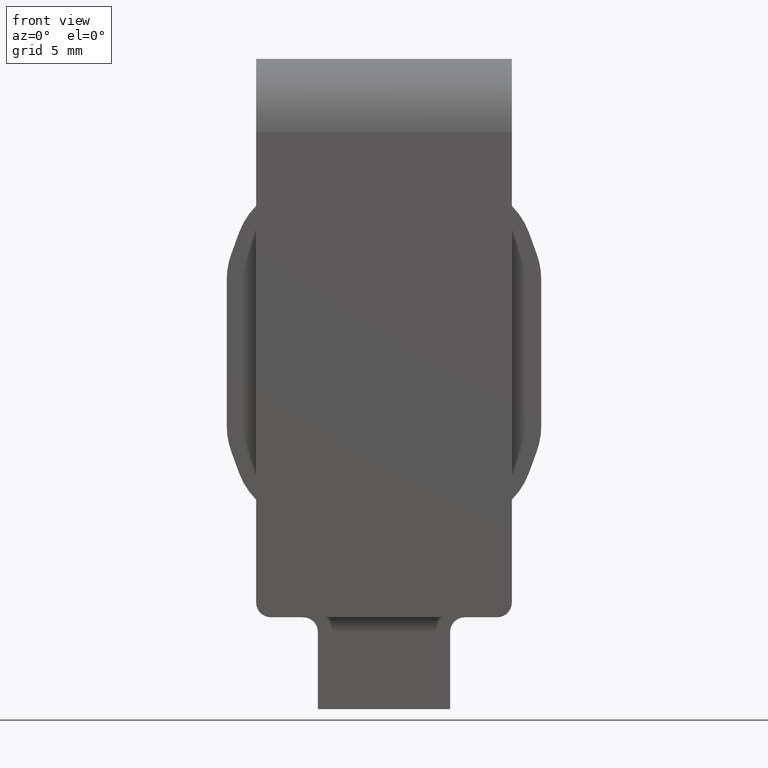
[diagram: clean part render]
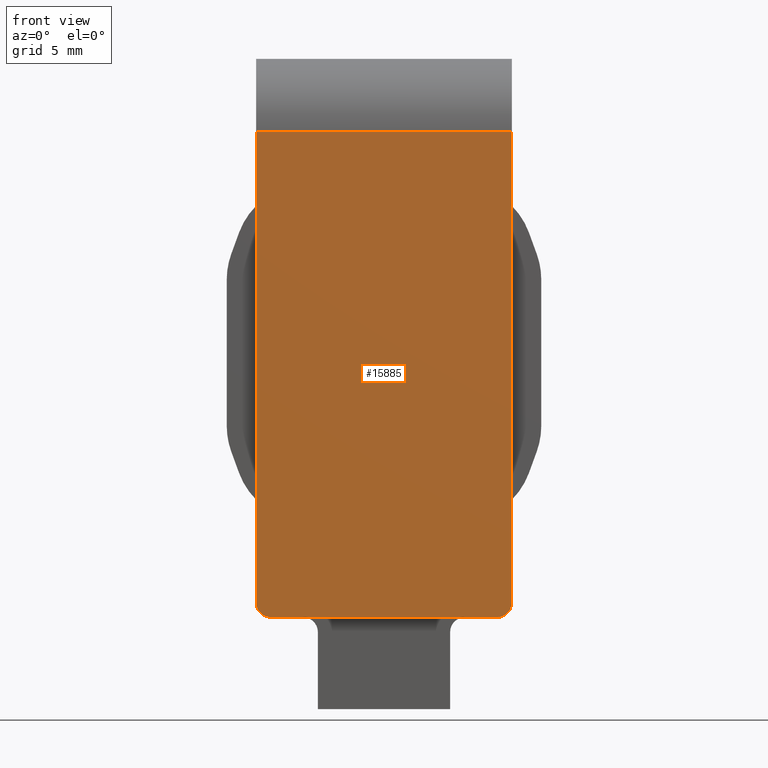
[diagram: same view with one face highlighted and labeled with its STEP entity id]
A machine part, front view. The second image highlights one B-rep face of the part: STEP entity #15885.
In plain terms, the highlighted planar face has unit normal (0, 1, 0).
Its self-contained STEP definition (entity closure, byte-faithful):
#222 = ORIENTED_EDGE ( 'NONE', *, *, #6494, .T. ) ;
#343 = CARTESIAN_POINT ( 'NONE',  ( 8.699999999999999289, 0.000000000000000000, 0.000000000000000000 ) ) ;
#473 = CARTESIAN_POINT ( 'NONE',  ( -8.699999999999999289, 0.000000000000000000, 0.000000000000000000 ) ) ;
#942 = DIRECTION ( 'NONE',  ( 0.000000000000000000, -1.141265444721583757E-16, 1.000000000000000000 ) ) ;
#1002 = EDGE_CURVE ( 'NONE', #12521, #16090, #15690, .T. ) ;
#1437 = DIRECTION ( 'NONE',  ( -0.000000000000000000, 1.000000000000000000, 1.141265444721583757E-16 ) ) ;
#1494 = CARTESIAN_POINT ( 'NONE',  ( 8.699999999999999289, 0.000000000000000000, 0.000000000000000000 ) ) ;
#1818 = LINE ( 'NONE', #9571, #4382 ) ;
#2210 = VERTEX_POINT ( 'NONE', #6812 ) ;
#3018 = AXIS2_PLACEMENT_3D ( 'NONE', #9914, #12358, #942 ) ;
#3408 = VECTOR ( 'NONE', #10595, 1000.000000000000000 ) ;
#3879 = CARTESIAN_POINT ( 'NONE',  ( -7.699999999999998401, 0.000000000000000000, 0.000000000000000000 ) ) ;
#4334 = FACE_OUTER_BOUND ( 'NONE', #11967, .T. ) ;
#4382 = VECTOR ( 'NONE', #14657, 1000.000000000000000 ) ;
#4410 = VERTEX_POINT ( 'NONE', #3879 ) ;
#4673 = EDGE_CURVE ( 'NONE', #12521, #15067, #9498, .T. ) ;
#4919 = VECTOR ( 'NONE', #11596, 1000.000000000000000 ) ;
#5080 = CIRCLE ( 'NONE', #3018, 1.000000000000000000 ) ;
#5236 = ORIENTED_EDGE ( 'NONE', *, *, #1002, .T. ) ;
#5261 = DIRECTION ( 'NONE',  ( 0.000000000000000000, -1.141265444721583757E-16, 1.000000000000000000 ) ) ;
#5461 = CARTESIAN_POINT ( 'NONE',  ( -7.699999999999998401, -1.141265444721583757E-16, 1.000000000000000000 ) ) ;
#5715 = VERTEX_POINT ( 'NONE', #9182 ) ;
#5891 = EDGE_CURVE ( 'NONE', #2210, #4410, #13443, .T. ) ;
#6494 = EDGE_CURVE ( 'NONE', #16090, #2210, #9259, .T. ) ;
#6498 = AXIS2_PLACEMENT_3D ( 'NONE', #343, #1437, #5261 ) ;
#6725 = ORIENTED_EDGE ( 'NONE', *, *, #7543, .T. ) ;
#6763 = AXIS2_PLACEMENT_3D ( 'NONE', #5461, #15578, #15680 ) ;
#6812 = CARTESIAN_POINT ( 'NONE',  ( -8.699999999999999289, -1.141265444721583757E-16, 1.000000000000000000 ) ) ;
#7239 = ORIENTED_EDGE ( 'NONE', *, *, #5891, .T. ) ;
#7543 = EDGE_CURVE ( 'NONE', #5715, #15067, #5080, .T. ) ;
#9182 = CARTESIAN_POINT ( 'NONE',  ( 7.699999999999999289, 0.000000000000000000, 0.000000000000000000 ) ) ;
#9259 = LINE ( 'NONE', #473, #10056 ) ;
#9498 = LINE ( 'NONE', #1494, #4919 ) ;
#9571 = CARTESIAN_POINT ( 'NONE',  ( 8.699999999999999289, 0.000000000000000000, 0.000000000000000000 ) ) ;
#9914 = CARTESIAN_POINT ( 'NONE',  ( 7.699999999999999289, -1.141265444721583757E-16, 1.000000000000000000 ) ) ;
#10056 = VECTOR ( 'NONE', #10582, 1000.000000000000000 ) ;
#10502 = PLANE ( 'NONE',  #6498 ) ;
#10522 = ORIENTED_EDGE ( 'NONE', *, *, #4673, .F. ) ;
#10582 = DIRECTION ( 'NONE',  ( -0.000000000000000000, 1.141265444721583757E-16, -1.000000000000000000 ) ) ;
#10595 = DIRECTION ( 'NONE',  ( -1.000000000000000000, 0.000000000000000000, 0.000000000000000000 ) ) ;
#10959 = CARTESIAN_POINT ( 'NONE',  ( -8.699999999999999289, -3.469446951953614189E-15, 33.02506281446689940 ) ) ;
#11596 = DIRECTION ( 'NONE',  ( -0.000000000000000000, 1.141265444721583757E-16, -1.000000000000000000 ) ) ;
#11937 = CARTESIAN_POINT ( 'NONE',  ( 8.699999999999999289, -3.769036299991080429E-15, 33.02506281446689940 ) ) ;
#11967 = EDGE_LOOP ( 'NONE', ( #10522, #5236, #222, #7239, #15845, #6725 ) ) ;
#11981 = EDGE_CURVE ( 'NONE', #5715, #4410, #1818, .T. ) ;
#12358 = DIRECTION ( 'NONE',  ( 0.000000000000000000, -1.000000000000000000, -1.141265444721583757E-16 ) ) ;
#12521 = VERTEX_POINT ( 'NONE', #13090 ) ;
#12783 = CARTESIAN_POINT ( 'NONE',  ( 8.699999999999999289, -1.141265444721583757E-16, 1.000000000000000000 ) ) ;
#13090 = CARTESIAN_POINT ( 'NONE',  ( 8.699999999999999289, -3.469446951953614189E-15, 33.02506281446689940 ) ) ;
#13443 = CIRCLE ( 'NONE', #6763, 1.000000000000000000 ) ;
#14657 = DIRECTION ( 'NONE',  ( -1.000000000000000000, -0.000000000000000000, -0.000000000000000000 ) ) ;
#15067 = VERTEX_POINT ( 'NONE', #12783 ) ;
#15578 = DIRECTION ( 'NONE',  ( 0.000000000000000000, -1.000000000000000000, -1.141265444721583757E-16 ) ) ;
#15680 = DIRECTION ( 'NONE',  ( 0.000000000000000000, -1.141265444721583757E-16, 1.000000000000000000 ) ) ;
#15690 = LINE ( 'NONE', #11937, #3408 ) ;
#15845 = ORIENTED_EDGE ( 'NONE', *, *, #11981, .F. ) ;
#15885 = ADVANCED_FACE ( 'NONE', ( #4334 ), #10502, .F. ) ;
#16090 = VERTEX_POINT ( 'NONE', #10959 ) ;